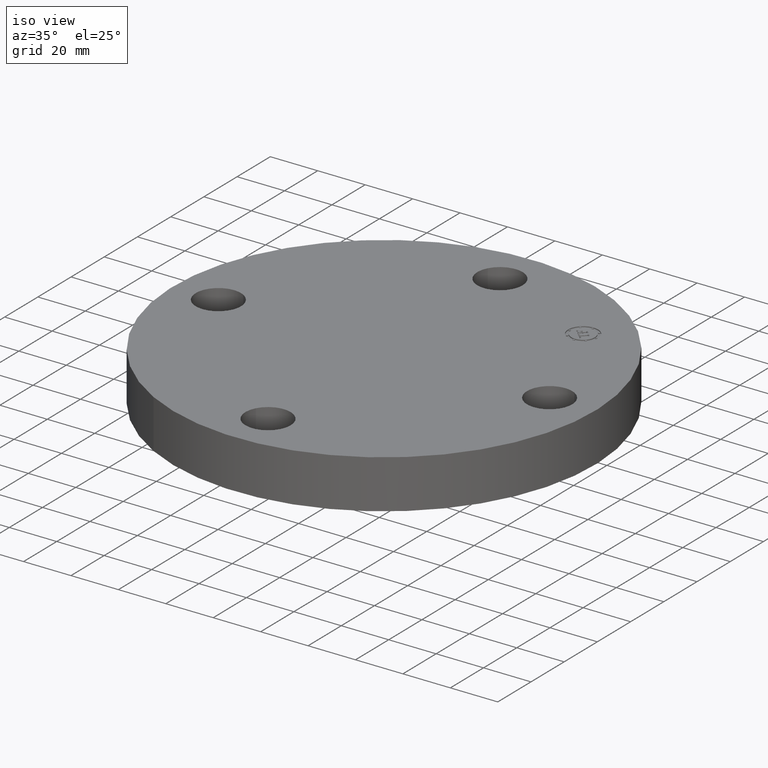
[diagram: clean part render]
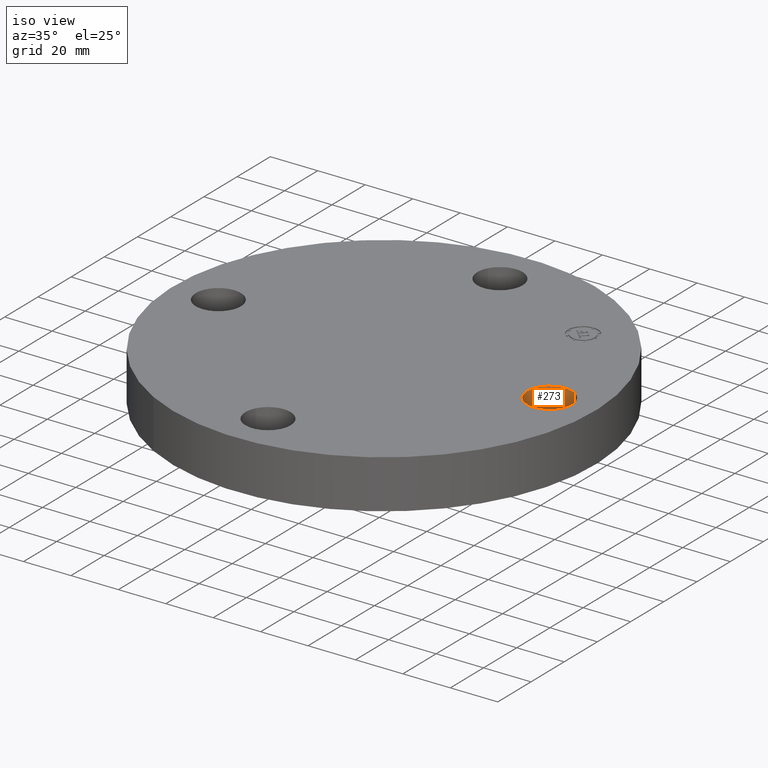
[diagram: same view with one face highlighted and labeled with its STEP entity id]
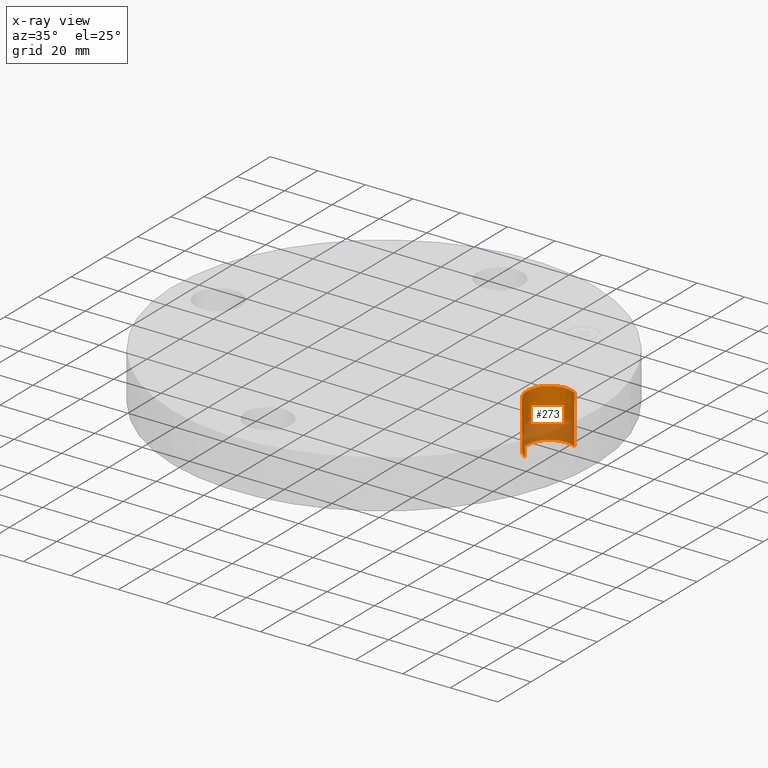
[diagram: x-ray of the same camera — body ghosted, the highlighted face saturated]
A machine part, iso view. The second image highlights one B-rep face of the part: STEP entity #273.
The next image is the same camera in x-ray: the body ghosted, the highlighted face saturated — about 39% of this face is hidden behind the body in this view.
In plain terms, the highlighted cylindrical surface (edge-blend (fillet) strip) has radius 9.525 mm, axis along (0, -0, -1).
Its self-contained STEP definition (entity closure, byte-faithful):
#229=AXIS2_PLACEMENT_3D('Cylinder Axis2P3D',#226,#227,#228) ;
#242=AXIS2_PLACEMENT_3D('Circle Axis2P3D',#240,#241,$) ;
#249=AXIS2_PLACEMENT_3D('Circle Axis2P3D',#247,#248,$) ;
#263=AXIS2_PLACEMENT_3D('Circle Axis2P3D',#261,#262,$) ;
#226=CARTESIAN_POINT('Axis2P3D Location',(2.75000000001,1.68388934883E-016,0.806062992129)) ;
#231=CARTESIAN_POINT('Line Origine',(2.57021542303,-0.32909346071,0.405000000002)) ;
#235=CARTESIAN_POINT('Vertex',(2.57021542303,-0.32909346071,0.)) ;
#237=CARTESIAN_POINT('Vertex',(2.57021542303,-0.32909346071,0.810000000003)) ;
#240=CARTESIAN_POINT('Axis2P3D Location',(2.75000000001,1.68388934883E-016,0.)) ;
#244=CARTESIAN_POINT('Vertex',(2.37500000001,2.79741234551E-016,0.)) ;
#247=CARTESIAN_POINT('Axis2P3D Location',(2.75000000001,1.68388934883E-016,0.)) ;
#251=CARTESIAN_POINT('Vertex',(2.92978457699,0.32909346071,0.)) ;
#254=CARTESIAN_POINT('Line Origine',(2.92978457699,0.32909346071,0.405000000002)) ;
#258=CARTESIAN_POINT('Vertex',(2.92978457699,0.32909346071,0.810000000003)) ;
#261=CARTESIAN_POINT('Axis2P3D Location',(2.75000000001,1.68388934883E-016,0.810000000003)) ;
#227=DIRECTION('Axis2P3D Direction',(0.,-0.,-0.0393700787402)) ;
#228=DIRECTION('Axis2P3D XDirection',(0.0188750212049,0.0345504945626,-0.)) ;
#232=DIRECTION('Vector Direction',(0.,0.,-0.0393700787402)) ;
#241=DIRECTION('Axis2P3D Direction',(0.,-0.,-0.0393700787402)) ;
#248=DIRECTION('Axis2P3D Direction',(0.,-0.,-0.0393700787402)) ;
#255=DIRECTION('Vector Direction',(0.,0.,-0.0393700787402)) ;
#262=DIRECTION('Axis2P3D Direction',(0.,-0.,-0.0393700787402)) ;
#233=VECTOR('Line Direction',#232,0.0393700787402) ;
#256=VECTOR('Line Direction',#255,0.0393700787402) ;
#267=ORIENTED_EDGE('',*,*,#239,.F.) ;
#268=ORIENTED_EDGE('',*,*,#246,.T.) ;
#269=ORIENTED_EDGE('',*,*,#253,.T.) ;
#270=ORIENTED_EDGE('',*,*,#260,.T.) ;
#271=ORIENTED_EDGE('',*,*,#265,.F.) ;
#273=ADVANCED_FACE('PartBody',(#272),#230,.F.) ;
#243=CIRCLE('generated circle',#242,0.375000000001) ;
#250=CIRCLE('generated circle',#249,0.375000000001) ;
#264=CIRCLE('generated circle',#263,0.375000000001) ;
#230=CYLINDRICAL_SURFACE('generated cylinder',#229,0.375000000001) ;
#239=EDGE_CURVE('',#236,#238,#234,.F.) ;
#246=EDGE_CURVE('',#236,#245,#243,.T.) ;
#253=EDGE_CURVE('',#245,#252,#250,.T.) ;
#260=EDGE_CURVE('',#252,#259,#257,.F.) ;
#265=EDGE_CURVE('',#238,#259,#264,.T.) ;
#266=EDGE_LOOP('',(#267,#268,#269,#270,#271)) ;
#272=FACE_OUTER_BOUND('',#266,.T.) ;
#234=LINE('Line',#231,#233) ;
#257=LINE('Line',#254,#256) ;
#236=VERTEX_POINT('',#235) ;
#238=VERTEX_POINT('',#237) ;
#245=VERTEX_POINT('',#244) ;
#252=VERTEX_POINT('',#251) ;
#259=VERTEX_POINT('',#258) ;